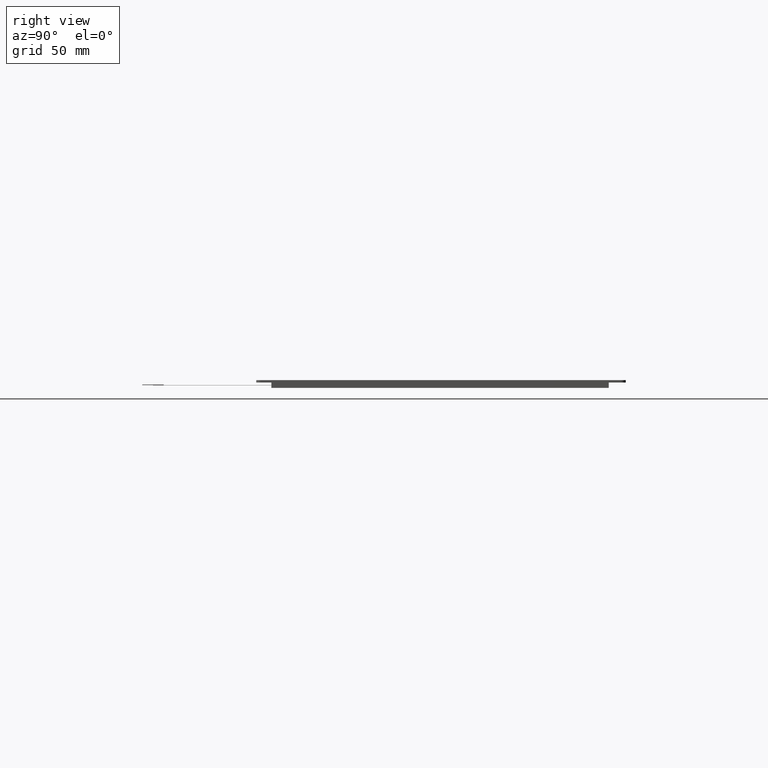
[diagram: clean part render]
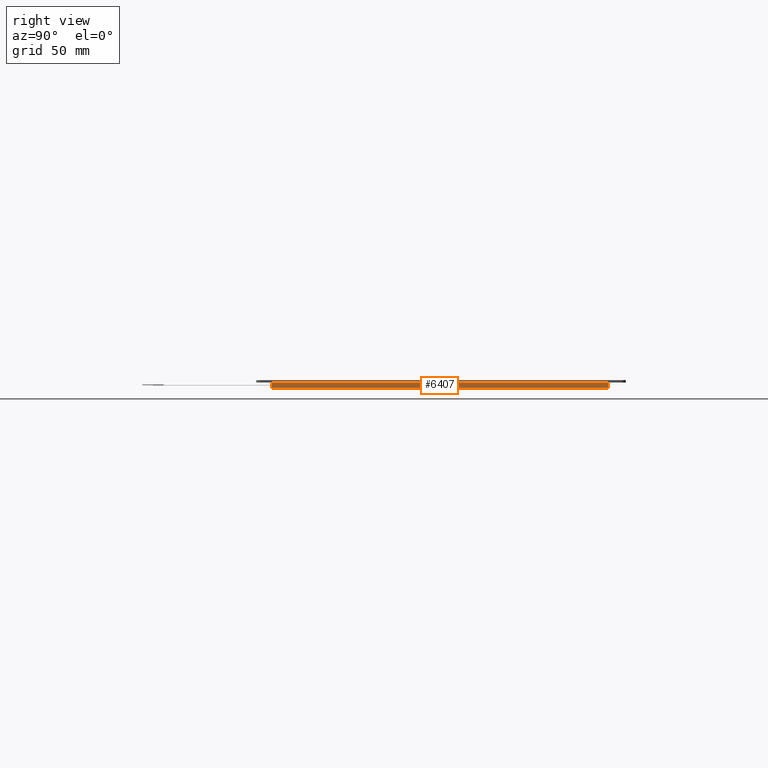
[diagram: same view with one face highlighted and labeled with its STEP entity id]
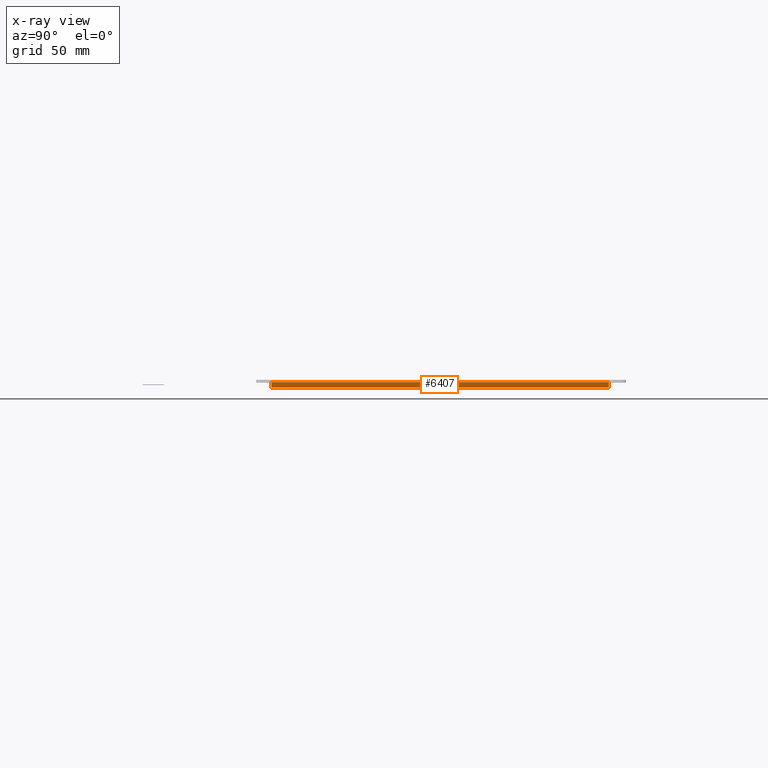
[diagram: x-ray of the same camera — body ghosted, the highlighted face saturated]
A machine part, right view. The second image highlights one B-rep face of the part: STEP entity #6407.
The next image is the same camera in x-ray: the body ghosted, the highlighted face saturated — about 0% of this face is hidden behind the body in this view.
In plain terms, the highlighted planar face has unit normal (1, 0, 0).
Its self-contained STEP definition (entity closure, byte-faithful):
#353=FACE_OUTER_BOUND('',#665,.T.);
#665=EDGE_LOOP('',(#5746,#5747,#5748,#5749));
#691=LINE('',#8354,#1579);
#1546=LINE('',#10083,#2434);
#1547=LINE('',#10086,#2435);
#1548=LINE('',#10087,#2436);
#1579=VECTOR('',#6805,10.);
#2434=VECTOR('',#8266,10.);
#2435=VECTOR('',#8269,10.);
#2436=VECTOR('',#8270,10.);
#2488=VERTEX_POINT('',#8351);
#2489=VERTEX_POINT('',#8353);
#3060=VERTEX_POINT('',#10081);
#3061=VERTEX_POINT('',#10085);
#3095=EDGE_CURVE('',#2488,#2489,#691,.T.);
#3958=EDGE_CURVE('',#2488,#3060,#1546,.T.);
#3959=EDGE_CURVE('',#3061,#3060,#1547,.T.);
#3960=EDGE_CURVE('',#2489,#3061,#1548,.T.);
#5746=ORIENTED_EDGE('',*,*,#3095,.F.);
#5747=ORIENTED_EDGE('',*,*,#3958,.T.);
#5748=ORIENTED_EDGE('',*,*,#3959,.F.);
#5749=ORIENTED_EDGE('',*,*,#3960,.F.);
#6073=PLANE('',#6753);
#6407=ADVANCED_FACE('',(#353),#6073,.T.);
#6753=AXIS2_PLACEMENT_3D('',#10084,#8267,#8268);
#6805=DIRECTION('',(-2.26576127474522E-16,1.,0.));
#8266=DIRECTION('',(0.,0.,-1.));
#8267=DIRECTION('center_axis',(1.,2.26576127474522E-16,0.));
#8268=DIRECTION('ref_axis',(2.26576127474522E-16,-1.,0.));
#8269=DIRECTION('',(2.26576127474522E-16,-1.,0.));
#8270=DIRECTION('',(0.,0.,-1.));
#8351=CARTESIAN_POINT('',(116.22,-81.2,0.));
#8353=CARTESIAN_POINT('',(116.22,75.6000000000001,0.));
#8354=CARTESIAN_POINT('',(116.22,-81.2,0.));
#10081=CARTESIAN_POINT('',(116.22,-81.2,-2.5));
#10083=CARTESIAN_POINT('',(116.22,-81.2,0.));
#10084=CARTESIAN_POINT('Origin',(116.22,75.6000000000001,0.));
#10085=CARTESIAN_POINT('',(116.22,75.6000000000001,-2.5));
#10086=CARTESIAN_POINT('',(116.22,-81.2,-2.5));
#10087=CARTESIAN_POINT('',(116.22,75.6000000000001,0.));